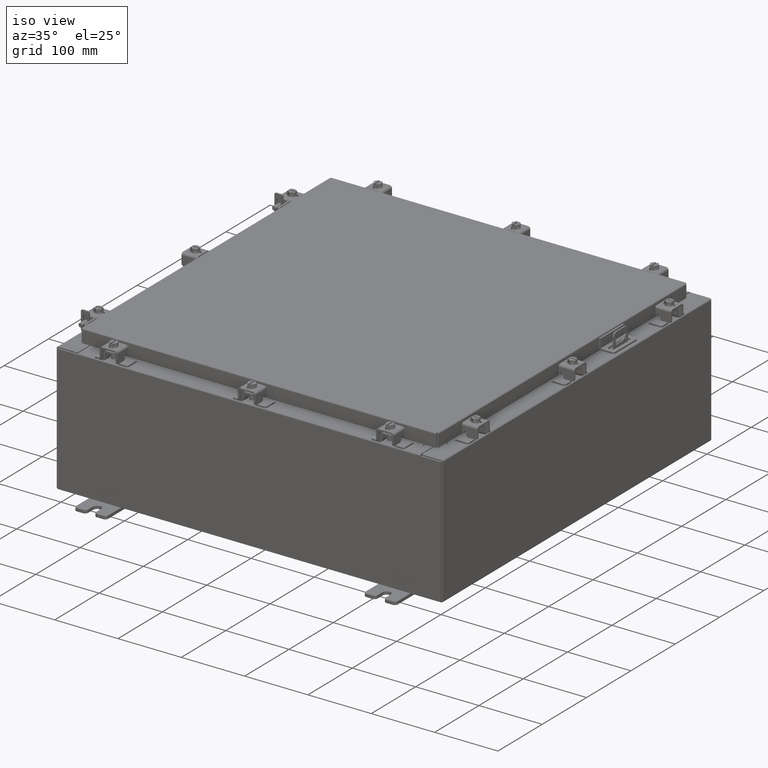
[diagram: clean part render]
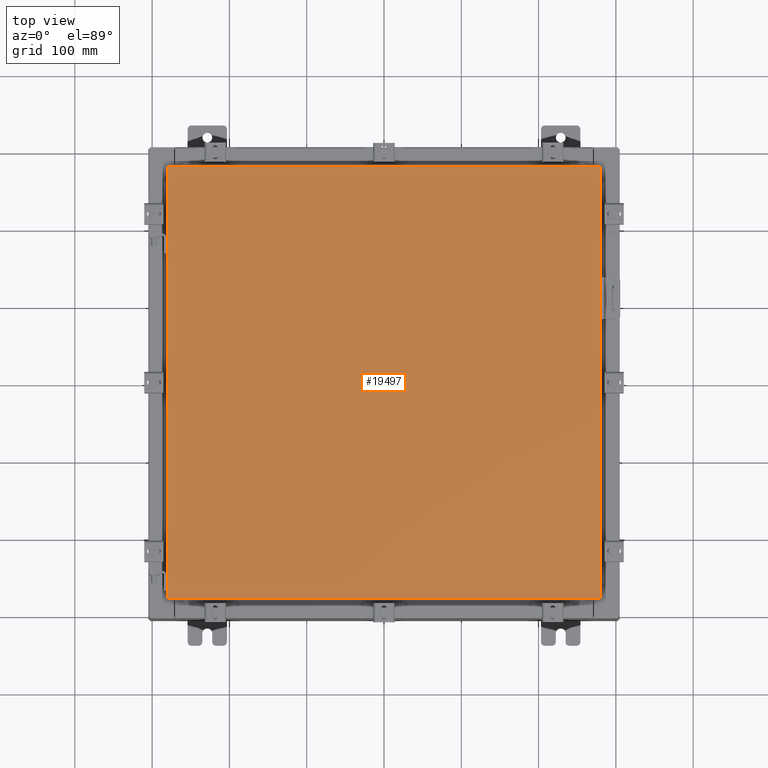
[diagram: tour spotlight — one face highlighted and labeled with its STEP entity id]
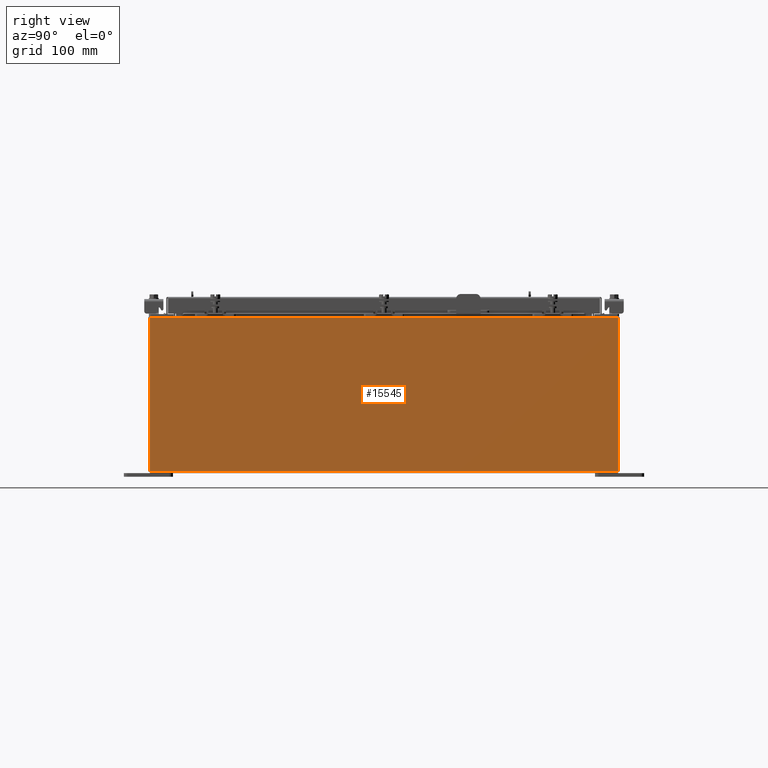
[diagram: tour spotlight — one face highlighted and labeled with its STEP entity id]
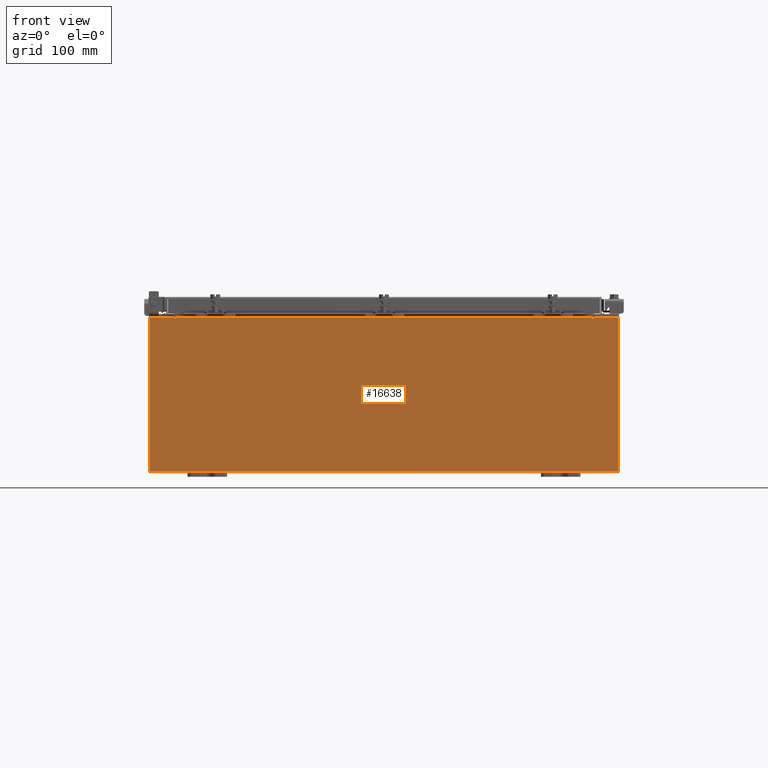
[diagram: tour spotlight — one face highlighted and labeled with its STEP entity id]
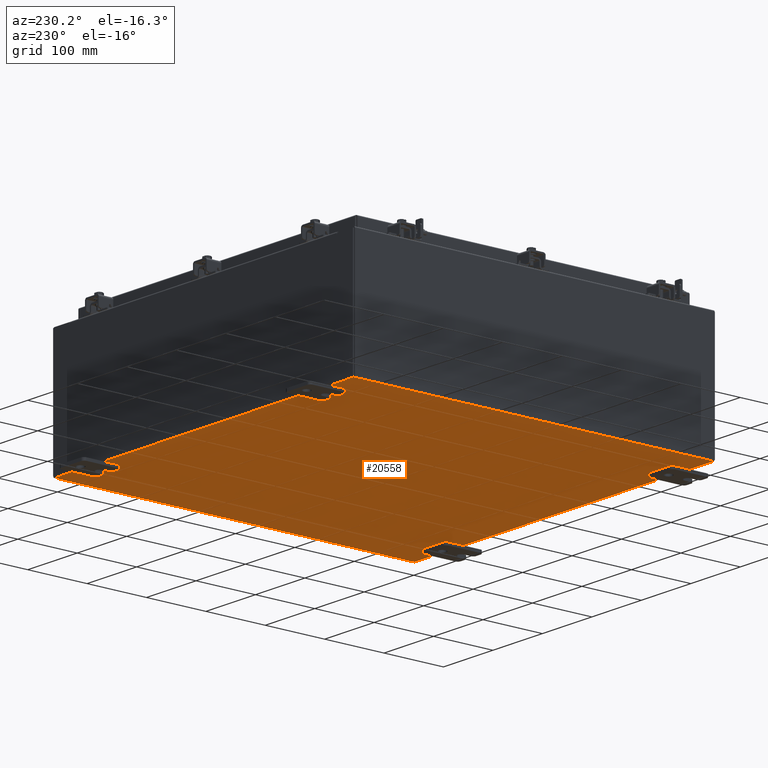
[diagram: tour spotlight — one face highlighted and labeled with its STEP entity id]
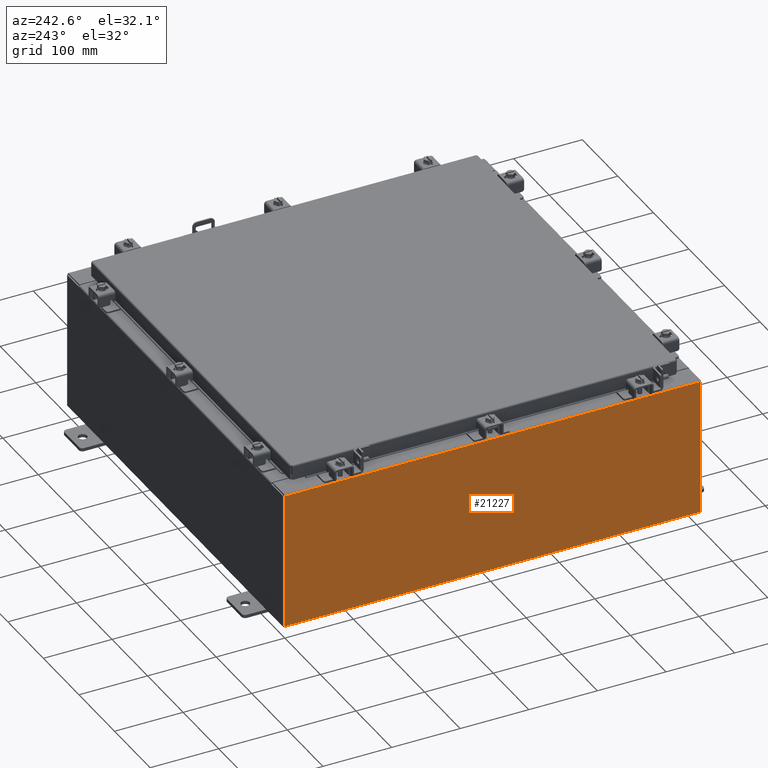
[diagram: tour spotlight — one face highlighted and labeled with its STEP entity id]
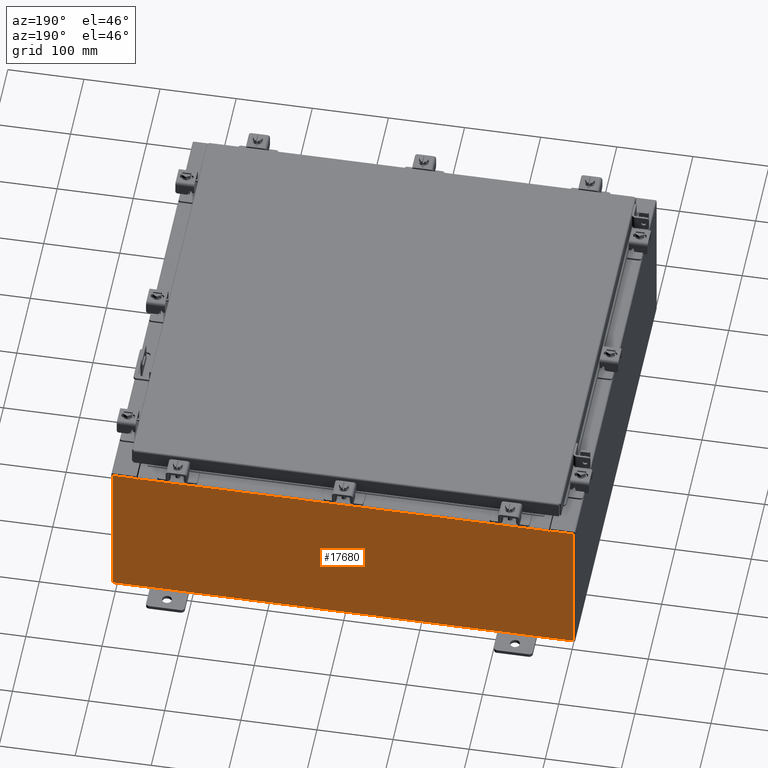
[diagram: tour spotlight — one face highlighted and labeled with its STEP entity id]
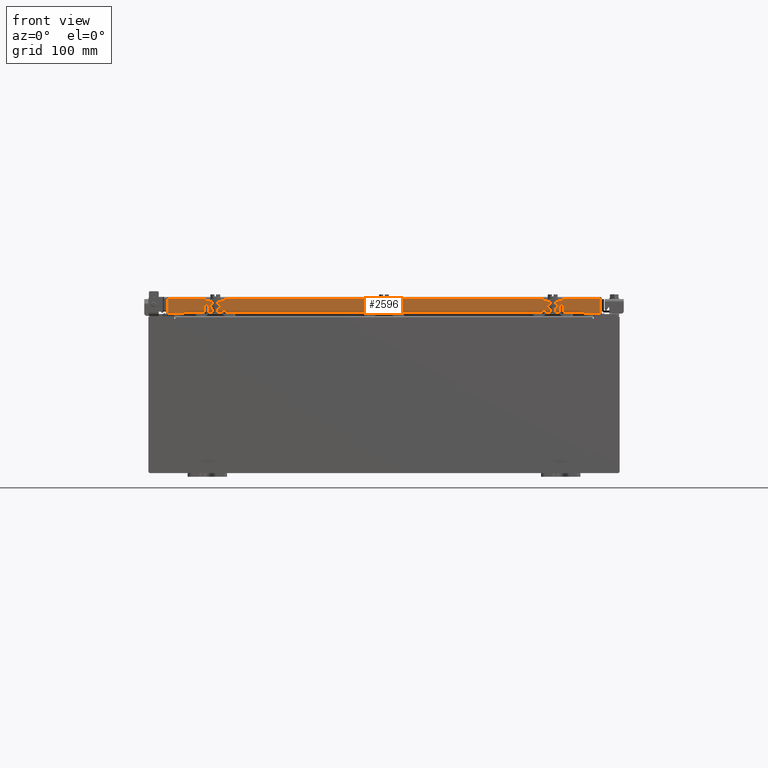
[diagram: tour spotlight — one face highlighted and labeled with its STEP entity id]
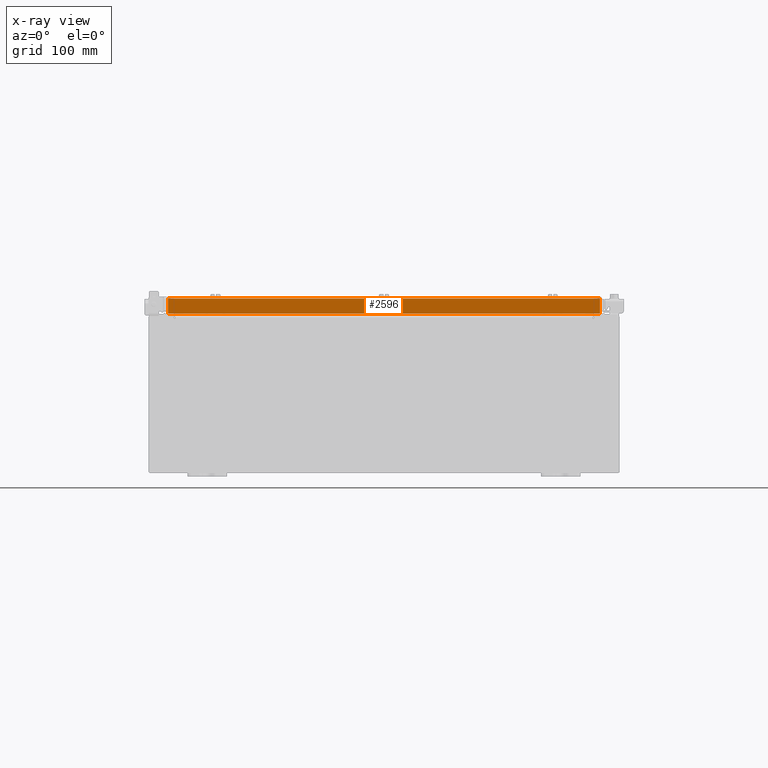
[diagram: x-ray of the same camera — body ghosted, this tour face saturated]
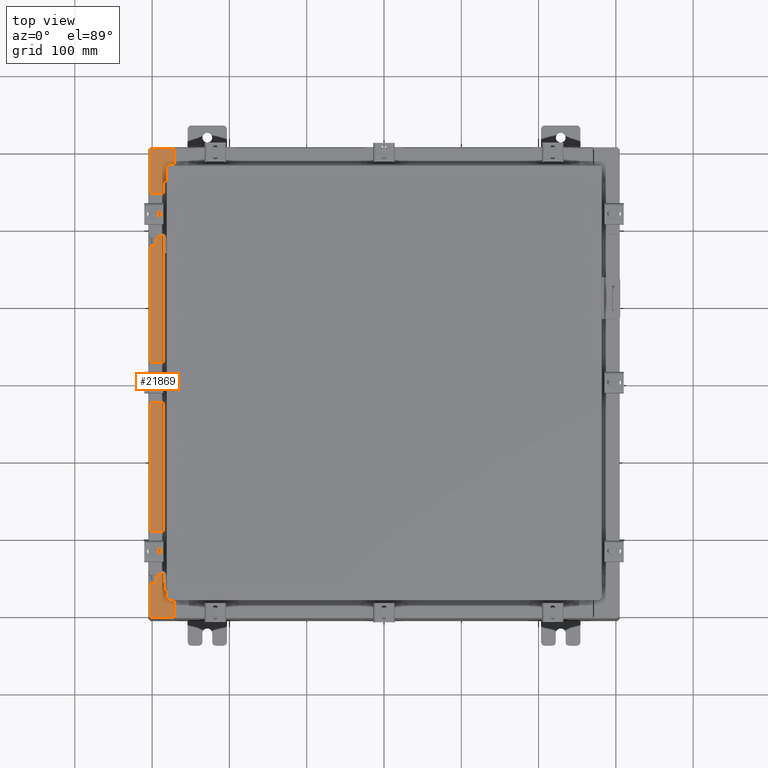
[diagram: tour spotlight — one face highlighted and labeled with its STEP entity id]
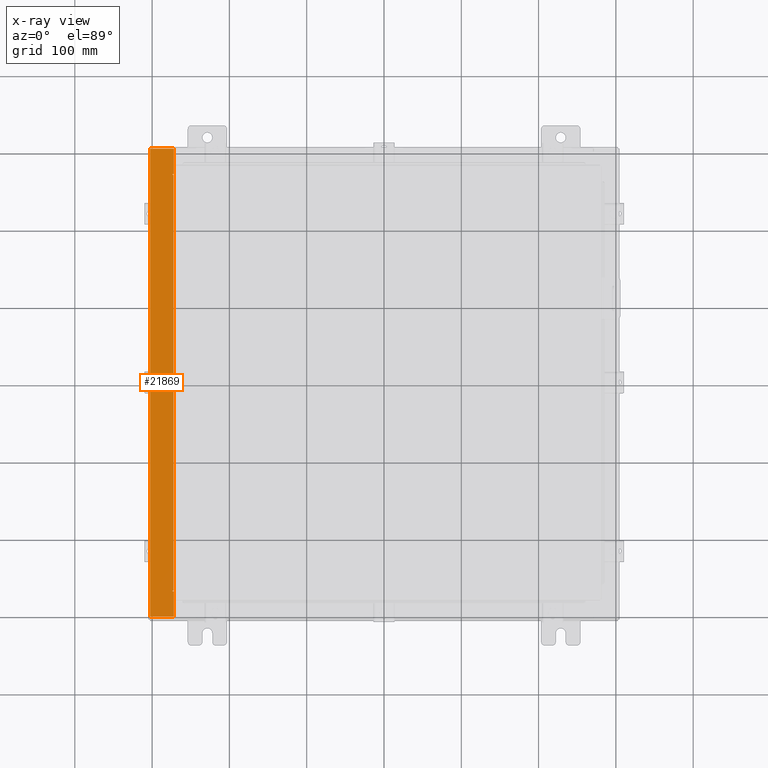
[diagram: x-ray of the same camera — body ghosted, this tour face saturated]
A machine part: a face-by-face anatomy tour. The part has 2018 B-rep faces; the first image is the clean iso view, then the 8 largest visible faces are spotlighted one at a time (largest first), each with its STEP entity span.

Face 1 — top view, entity #19497. In plain terms, the highlighted planar face has unit normal (0, 0, -1).
Definition (entity closure, byte-faithful):
#1004 = VECTOR ( 'NONE', #16387, 39.37007874015748100 ) ;
#1671 = AXIS2_PLACEMENT_3D ( 'NONE', #12001, #6782, #19038 ) ;
#2399 = LINE ( 'NONE', #15863, #19867 ) ;
#3351 = EDGE_LOOP ( 'NONE', ( #6452, #11046, #9992, #14875 ) ) ;
#3413 = CARTESIAN_POINT ( 'NONE',  ( -11.00630000000000000, 11.00630000000000000, 0.0000000000000000000 ) ) ;
#3674 = DIRECTION ( 'NONE',  ( 0.0000000000000000000, 1.000000000000000000, 0.0000000000000000000 ) ) ;
#3941 = VERTEX_POINT ( 'NONE', #15073 ) ;
#6239 = CARTESIAN_POINT ( 'NONE',  ( -11.00630000000000000, 11.00630000000000000, 0.0000000000000000000 ) ) ;
#6452 = ORIENTED_EDGE ( 'NONE', *, *, #21199, .T. ) ;
#6782 = DIRECTION ( 'NONE',  ( 0.0000000000000000000, 0.0000000000000000000, -1.000000000000000000 ) ) ;
#6934 = EDGE_CURVE ( 'NONE', #8355, #3941, #15368, .T. ) ;
#7166 = FACE_OUTER_BOUND ( 'NONE', #3351, .T. ) ;
#8355 = VERTEX_POINT ( 'NONE', #3413 ) ;
#9000 = LINE ( 'NONE', #11472, #18306 ) ;
#9992 = ORIENTED_EDGE ( 'NONE', *, *, #13223, .T. ) ;
#10333 = LINE ( 'NONE', #12996, #1004 ) ;
#10724 = VECTOR ( 'NONE', #11530, 39.37007874015748100 ) ;
#11046 = ORIENTED_EDGE ( 'NONE', *, *, #13667, .T. ) ;
#11472 = CARTESIAN_POINT ( 'NONE',  ( -11.00630000000000000, -11.00630000000000000, 0.0000000000000000000 ) ) ;
#11530 = DIRECTION ( 'NONE',  ( 0.0000000000000000000, -1.000000000000000000, 0.0000000000000000000 ) ) ;
#12001 = CARTESIAN_POINT ( 'NONE',  ( 0.0000000000000000000, 0.0000000000000000000, 0.0000000000000000000 ) ) ;
#12996 = CARTESIAN_POINT ( 'NONE',  ( 11.00630000000000000, 11.00630000000000000, 0.0000000000000000000 ) ) ;
#13223 = EDGE_CURVE ( 'NONE', #18177, #8355, #10333, .T. ) ;
#13667 = EDGE_CURVE ( 'NONE', #19020, #18177, #2399, .T. ) ;
#14875 = ORIENTED_EDGE ( 'NONE', *, *, #6934, .T. ) ;
#15073 = CARTESIAN_POINT ( 'NONE',  ( -11.00630000000000000, -11.00630000000000000, 0.0000000000000000000 ) ) ;
#15368 = LINE ( 'NONE', #6239, #10724 ) ;
#15863 = CARTESIAN_POINT ( 'NONE',  ( 11.00630000000000000, -11.00630000000000000, 0.0000000000000000000 ) ) ;
#16387 = DIRECTION ( 'NONE',  ( -1.000000000000000000, -0.0000000000000000000, -0.0000000000000000000 ) ) ;
#17253 = PLANE ( 'NONE',  #1671 ) ;
#18177 = VERTEX_POINT ( 'NONE', #18359 ) ;
#18306 = VECTOR ( 'NONE', #18491, 39.37007874015748100 ) ;
#18359 = CARTESIAN_POINT ( 'NONE',  ( 11.00630000000000000, 11.00630000000000000, 0.0000000000000000000 ) ) ;
#18491 = DIRECTION ( 'NONE',  ( 1.000000000000000000, -0.0000000000000000000, -0.0000000000000000000 ) ) ;
#18890 = CARTESIAN_POINT ( 'NONE',  ( 11.00630000000000000, -11.00630000000000000, 0.0000000000000000000 ) ) ;
#19020 = VERTEX_POINT ( 'NONE', #18890 ) ;
#19038 = DIRECTION ( 'NONE',  ( -1.000000000000000000, 0.0000000000000000000, -0.0000000000000000000 ) ) ;
#19497 = ADVANCED_FACE ( 'NONE', ( #7166 ), #17253, .F. ) ;
#19867 = VECTOR ( 'NONE', #3674, 39.37007874015748100 ) ;
#21199 = EDGE_CURVE ( 'NONE', #3941, #19020, #9000, .T. ) ;

Face 2 — right view, entity #15545. In plain terms, the highlighted planar face has unit normal (-1, 0, 0).
Definition (entity closure, byte-faithful):
#184 = VECTOR ( 'NONE', #5291, 39.37007874015748100 ) ;
#894 = LINE ( 'NONE', #4488, #10769 ) ;
#1969 = PLANE ( 'NONE',  #5426 ) ;
#2558 = EDGE_CURVE ( 'NONE', #5245, #12346, #14137, .T. ) ;
#2944 = DIRECTION ( 'NONE',  ( 3.584876173029202900E-015, 0.0000000000000000000, 1.000000000000000000 ) ) ;
#3407 = VERTEX_POINT ( 'NONE', #5736 ) ;
#3460 = EDGE_CURVE ( 'NONE', #3407, #18003, #3470, .T. ) ;
#3470 = LINE ( 'NONE', #3863, #16814 ) ;
#3652 = CARTESIAN_POINT ( 'NONE',  ( 11.99999999999999800, -11.92530000000000400, 0.01299999999999983600 ) ) ;
#3863 = CARTESIAN_POINT ( 'NONE',  ( 12.00000000000003000, 11.92529999999999800, 7.837599999999992100 ) ) ;
#4488 = CARTESIAN_POINT ( 'NONE',  ( 11.99999999999999800, -11.92530000000000400, -4.327932773236200600E-014 ) ) ;
#4972 = LINE ( 'NONE', #15133, #18679 ) ;
#5245 = VERTEX_POINT ( 'NONE', #9099 ) ;
#5291 = DIRECTION ( 'NONE',  ( -0.0000000000000000000, -1.000000000000000000, -0.0000000000000000000 ) ) ;
#5426 = AXIS2_PLACEMENT_3D ( 'NONE', #15933, #5466, #17705 ) ;
#5466 = DIRECTION ( 'NONE',  ( -1.000000000000000000, 0.0000000000000000000, 3.584876173029202900E-015 ) ) ;
#5736 = CARTESIAN_POINT ( 'NONE',  ( 12.00000000000003000, 11.92529999999999600, 7.837599999999992100 ) ) ;
#5754 = EDGE_LOOP ( 'NONE', ( #19774, #10238, #10787, #6641 ) ) ;
#6641 = ORIENTED_EDGE ( 'NONE', *, *, #19374, .T. ) ;
#6872 = CARTESIAN_POINT ( 'NONE',  ( 11.99999999999999800, -11.92530000000000400, 0.01299999999999984700 ) ) ;
#9099 = CARTESIAN_POINT ( 'NONE',  ( 11.99999999999999800, 11.92529999999999600, 0.01299999999999984700 ) ) ;
#10238 = ORIENTED_EDGE ( 'NONE', *, *, #18197, .T. ) ;
#10769 = VECTOR ( 'NONE', #13173, 39.37007874015748100 ) ;
#10787 = ORIENTED_EDGE ( 'NONE', *, *, #2558, .F. ) ;
#12346 = VERTEX_POINT ( 'NONE', #3652 ) ;
#13173 = DIRECTION ( 'NONE',  ( -3.584876173029202900E-015, 0.0000000000000000000, -1.000000000000000000 ) ) ;
#14137 = LINE ( 'NONE', #6872, #184 ) ;
#15133 = CARTESIAN_POINT ( 'NONE',  ( 11.99999999999999800, 11.92529999999999800, -4.327932773236200600E-014 ) ) ;
#15545 = ADVANCED_FACE ( 'NONE', ( #20644 ), #1969, .F. ) ;
#15933 = CARTESIAN_POINT ( 'NONE',  ( 11.99999999999999800, 0.0000000000000000000, -4.327932773236200600E-014 ) ) ;
#16213 = CARTESIAN_POINT ( 'NONE',  ( 12.00000000000002700, -11.92530000000000400, 7.837599999999998300 ) ) ;
#16814 = VECTOR ( 'NONE', #20178, 39.37007874015748100 ) ;
#17705 = DIRECTION ( 'NONE',  ( 3.584876173029202900E-015, 0.0000000000000000000, 1.000000000000000000 ) ) ;
#18003 = VERTEX_POINT ( 'NONE', #16213 ) ;
#18197 = EDGE_CURVE ( 'NONE', #18003, #12346, #894, .T. ) ;
#18679 = VECTOR ( 'NONE', #2944, 39.37007874015748100 ) ;
#19374 = EDGE_CURVE ( 'NONE', #5245, #3407, #4972, .T. ) ;
#19774 = ORIENTED_EDGE ( 'NONE', *, *, #3460, .T. ) ;
#20178 = DIRECTION ( 'NONE',  ( -0.0000000000000000000, -1.000000000000000000, -0.0000000000000000000 ) ) ;
#20644 = FACE_OUTER_BOUND ( 'NONE', #5754, .T. ) ;

Face 3 — front view, entity #16638. In plain terms, the highlighted planar face has unit normal (-0, 1, -0).
Definition (entity closure, byte-faithful):
#152 = EDGE_LOOP ( 'NONE', ( #7981, #20682, #7928, #1489, #3853, #22395, #12459, #19082, #11547, #632, #18635, #3039 ) ) ;
#253 = CARTESIAN_POINT ( 'NONE',  ( -11.92530000000000000, 0.0000000000000000000, 3.925299999999999600 ) ) ;
#390 = DIRECTION ( 'NONE',  ( 1.000000000000000000, 0.0000000000000000000, 0.0000000000000000000 ) ) ;
#632 = ORIENTED_EDGE ( 'NONE', *, *, #13686, .T. ) ;
#1236 = VERTEX_POINT ( 'NONE', #22420 ) ;
#1337 = DIRECTION ( 'NONE',  ( 0.0000000000000000000, 0.0000000000000000000, 1.000000000000000000 ) ) ;
#1435 = CARTESIAN_POINT ( 'NONE',  ( -10.63720000000000400, 1.024442997624098700E-016, 3.912299999999999700 ) ) ;
#1447 = LINE ( 'NONE', #6732, #19476 ) ;
#1489 = ORIENTED_EDGE ( 'NONE', *, *, #17178, .T. ) ;
#1768 = VERTEX_POINT ( 'NONE', #20661 ) ;
#1871 = VECTOR ( 'NONE', #15946, 39.37007874015748100 ) ;
#2002 = VECTOR ( 'NONE', #6566, 39.37007874015748100 ) ;
#2107 = AXIS2_PLACEMENT_3D ( 'NONE', #14814, #4365, #16553 ) ;
#3039 = ORIENTED_EDGE ( 'NONE', *, *, #6347, .T. ) ;
#3083 = CIRCLE ( 'NONE', #2107, 0.01867499999999949400 ) ;
#3476 = PLANE ( 'NONE',  #4865 ) ;
#3526 = VERTEX_POINT ( 'NONE', #21753 ) ;
#3684 = VERTEX_POINT ( 'NONE', #13070 ) ;
#3685 = CARTESIAN_POINT ( 'NONE',  ( 10.65587500000000200, 0.0000000000000000000, 3.874949999999999700 ) ) ;
#3749 = CARTESIAN_POINT ( 'NONE',  ( -11.92530000000000000, 0.0000000000000000000, -3.925299999999999600 ) ) ;
#3853 = ORIENTED_EDGE ( 'NONE', *, *, #15864, .F. ) ;
#4142 = CARTESIAN_POINT ( 'NONE',  ( -10.63720000000000400, -0.0000000000000000000, 0.0000000000000000000 ) ) ;
#4144 = VERTEX_POINT ( 'NONE', #20190 ) ;
#4365 = DIRECTION ( 'NONE',  ( -0.0000000000000000000, 1.000000000000000000, -0.0000000000000000000 ) ) ;
#4865 = AXIS2_PLACEMENT_3D ( 'NONE', #6860, #5206, #17419 ) ;
#5206 = DIRECTION ( 'NONE',  ( 0.0000000000000000000, -1.000000000000000000, 0.0000000000000000000 ) ) ;
#5246 = CARTESIAN_POINT ( 'NONE',  ( 10.63720000000000400, 0.0000000000000000000, 3.912299999999999700 ) ) ;
#5424 = DIRECTION ( 'NONE',  ( 0.0000000000000000000, 0.0000000000000000000, -1.000000000000000000 ) ) ;
#5634 = LINE ( 'NONE', #21378, #10318 ) ;
#5639 = EDGE_CURVE ( 'NONE', #1768, #1236, #18135, .T. ) ;
#5713 = CARTESIAN_POINT ( 'NONE',  ( -11.92530000000000000, 0.0000000000000000000, 3.925299999999999600 ) ) ;
#5930 = LINE ( 'NONE', #3749, #1871 ) ;
#6295 = VERTEX_POINT ( 'NONE', #17045 ) ;
#6347 = EDGE_CURVE ( 'NONE', #8864, #4144, #1447, .T. ) ;
#6566 = DIRECTION ( 'NONE',  ( 0.0000000000000000000, 0.0000000000000000000, 1.000000000000000000 ) ) ;
#6640 = VECTOR ( 'NONE', #11922, 39.37007874015748100 ) ;
#6732 = CARTESIAN_POINT ( 'NONE',  ( -11.92530000000000000, 0.0000000000000000000, 3.925299999999999600 ) ) ;
#6860 = CARTESIAN_POINT ( 'NONE',  ( 0.0000000000000000000, 0.0000000000000000000, 0.0000000000000000000 ) ) ;
#7046 = VERTEX_POINT ( 'NONE', #19103 ) ;
#7689 = CARTESIAN_POINT ( 'NONE',  ( -10.63720000000000400, -0.0000000000000000000, 3.874949999999999700 ) ) ;
#7928 = ORIENTED_EDGE ( 'NONE', *, *, #18667, .F. ) ;
#7981 = ORIENTED_EDGE ( 'NONE', *, *, #19522, .F. ) ;
#8300 = VECTOR ( 'NONE', #390, 39.37007874015748100 ) ;
#8542 = CARTESIAN_POINT ( 'NONE',  ( -10.67455000000000200, -0.0000000000000000000, 0.0000000000000000000 ) ) ;
#8864 = VERTEX_POINT ( 'NONE', #17810 ) ;
#9180 = DIRECTION ( 'NONE',  ( 0.0000000000000000000, 0.0000000000000000000, -1.000000000000000000 ) ) ;
#10034 = VECTOR ( 'NONE', #15437, 39.37007874015748100 ) ;
#10067 = CARTESIAN_POINT ( 'NONE',  ( 10.63720000000000400, 0.0000000000000000000, 0.0000000000000000000 ) ) ;
#10236 = FACE_OUTER_BOUND ( 'NONE', #152, .T. ) ;
#10318 = VECTOR ( 'NONE', #9180, 39.37007874015748100 ) ;
#10716 = AXIS2_PLACEMENT_3D ( 'NONE', #3685, #15874, #5424 ) ;
#10945 = DIRECTION ( 'NONE',  ( -0.0000000000000000000, -0.0000000000000000000, 1.000000000000000000 ) ) ;
#11073 = LINE ( 'NONE', #10067, #15174 ) ;
#11286 = LINE ( 'NONE', #4142, #15384 ) ;
#11417 = VECTOR ( 'NONE', #10945, 39.37007874015748100 ) ;
#11547 = ORIENTED_EDGE ( 'NONE', *, *, #14521, .T. ) ;
#11922 = DIRECTION ( 'NONE',  ( 1.000000000000000000, 0.0000000000000000000, 0.0000000000000000000 ) ) ;
#11973 = LINE ( 'NONE', #5713, #11417 ) ;
#12459 = ORIENTED_EDGE ( 'NONE', *, *, #14832, .F. ) ;
#13070 = CARTESIAN_POINT ( 'NONE',  ( -10.63720000000000400, 1.024442997624098700E-016, 3.912299999999999700 ) ) ;
#13095 = EDGE_CURVE ( 'NONE', #3526, #8864, #11973, .T. ) ;
#13686 = EDGE_CURVE ( 'NONE', #7046, #3526, #5930, .T. ) ;
#14521 = EDGE_CURVE ( 'NONE', #1236, #7046, #5634, .T. ) ;
#14647 = LINE ( 'NONE', #20624, #10034 ) ;
#14814 = CARTESIAN_POINT ( 'NONE',  ( -10.65587500000000200, 0.0000000000000000000, 3.874949999999999700 ) ) ;
#14832 = EDGE_CURVE ( 'NONE', #1768, #6295, #14647, .T. ) ;
#15174 = VECTOR ( 'NONE', #1337, 39.37007874015748100 ) ;
#15384 = VECTOR ( 'NONE', #16331, 39.37007874015748100 ) ;
#15437 = DIRECTION ( 'NONE',  ( -4.340572780400004900E-014, 0.0000000000000000000, -1.000000000000000000 ) ) ;
#15447 = DIRECTION ( 'NONE',  ( 1.000000000000000000, 0.0000000000000000000, 0.0000000000000000000 ) ) ;
#15864 = EDGE_CURVE ( 'NONE', #17270, #20227, #11073, .T. ) ;
#15874 = DIRECTION ( 'NONE',  ( -0.0000000000000000000, 1.000000000000000000, -0.0000000000000000000 ) ) ;
#15946 = DIRECTION ( 'NONE',  ( -1.000000000000000000, -0.0000000000000000000, -0.0000000000000000000 ) ) ;
#16331 = DIRECTION ( 'NONE',  ( 0.0000000000000000000, 0.0000000000000000000, -1.000000000000000000 ) ) ;
#16553 = DIRECTION ( 'NONE',  ( 0.0000000000000000000, 0.0000000000000000000, -1.000000000000000000 ) ) ;
#16638 = ADVANCED_FACE ( 'NONE', ( #10236 ), #3476, .F. ) ;
#16724 = EDGE_CURVE ( 'NONE', #6295, #17270, #22456, .T. ) ;
#17045 = CARTESIAN_POINT ( 'NONE',  ( 10.67455000000000200, 0.0000000000000000000, 3.874949999999999700 ) ) ;
#17178 = EDGE_CURVE ( 'NONE', #3684, #20227, #20574, .T. ) ;
#17270 = VERTEX_POINT ( 'NONE', #19087 ) ;
#17419 = DIRECTION ( 'NONE',  ( 0.0000000000000000000, -0.0000000000000000000, -1.000000000000000000 ) ) ;
#17810 = CARTESIAN_POINT ( 'NONE',  ( -11.92530000000000000, 0.0000000000000000000, 3.925299999999999600 ) ) ;
#18135 = LINE ( 'NONE', #253, #8300 ) ;
#18253 = CARTESIAN_POINT ( 'NONE',  ( -10.67455000000000200, 0.0000000000000000000, 3.874949999999999700 ) ) ;
#18635 = ORIENTED_EDGE ( 'NONE', *, *, #13095, .T. ) ;
#18667 = EDGE_CURVE ( 'NONE', #3684, #19217, #11286, .T. ) ;
#19082 = ORIENTED_EDGE ( 'NONE', *, *, #5639, .T. ) ;
#19087 = CARTESIAN_POINT ( 'NONE',  ( 10.63720000000000400, 0.0000000000000000000, 3.874949999999999700 ) ) ;
#19103 = CARTESIAN_POINT ( 'NONE',  ( 11.92530000000000000, 0.0000000000000000000, -3.925299999999999600 ) ) ;
#19217 = VERTEX_POINT ( 'NONE', #7689 ) ;
#19235 = EDGE_CURVE ( 'NONE', #19217, #21121, #3083, .T. ) ;
#19476 = VECTOR ( 'NONE', #15447, 39.37007874015748100 ) ;
#19522 = EDGE_CURVE ( 'NONE', #21121, #4144, #20569, .T. ) ;
#20190 = CARTESIAN_POINT ( 'NONE',  ( -10.67455000000000200, 0.0000000000000000000, 3.925299999999999600 ) ) ;
#20227 = VERTEX_POINT ( 'NONE', #5246 ) ;
#20569 = LINE ( 'NONE', #8542, #2002 ) ;
#20574 = LINE ( 'NONE', #1435, #6640 ) ;
#20624 = CARTESIAN_POINT ( 'NONE',  ( 10.67454999999983300, -0.0000000000000000000, -4.633366117301815000E-013 ) ) ;
#20661 = CARTESIAN_POINT ( 'NONE',  ( 10.67455000000000200, 0.0000000000000000000, 3.925299999999999600 ) ) ;
#20682 = ORIENTED_EDGE ( 'NONE', *, *, #19235, .F. ) ;
#21121 = VERTEX_POINT ( 'NONE', #18253 ) ;
#21378 = CARTESIAN_POINT ( 'NONE',  ( 11.92530000000000000, 0.0000000000000000000, 3.925299999999999600 ) ) ;
#21753 = CARTESIAN_POINT ( 'NONE',  ( -11.92530000000000000, 0.0000000000000000000, -3.925299999999999600 ) ) ;
#22395 = ORIENTED_EDGE ( 'NONE', *, *, #16724, .F. ) ;
#22420 = CARTESIAN_POINT ( 'NONE',  ( 11.92530000000000000, 0.0000000000000000000, 3.925299999999999600 ) ) ;
#22456 = CIRCLE ( 'NONE', #10716, 0.01867499999999949400 ) ;

Face 4 — auxiliary view, entity #20558. In plain terms, the highlighted planar face has unit normal (0, 0, -1).
Definition (entity closure, byte-faithful):
#628 = VERTEX_POINT ( 'NONE', #21792 ) ;
#1186 = PLANE ( 'NONE',  #16741 ) ;
#1551 = CARTESIAN_POINT ( 'NONE',  ( -11.91230000000000400, -11.92530000000000000, -0.07469999999999994700 ) ) ;
#2127 = EDGE_CURVE ( 'NONE', #11741, #628, #5144, .T. ) ;
#2490 = VERTEX_POINT ( 'NONE', #1551 ) ;
#2967 = DIRECTION ( 'NONE',  ( 0.0000000000000000000, 0.0000000000000000000, -1.000000000000000000 ) ) ;
#3244 = ORIENTED_EDGE ( 'NONE', *, *, #2127, .T. ) ;
#3870 = EDGE_LOOP ( 'NONE', ( #8581, #20305, #18083, #3244 ) ) ;
#4400 = VECTOR ( 'NONE', #10295, 39.37007874015748100 ) ;
#4610 = DIRECTION ( 'NONE',  ( -0.0000000000000000000, -1.000000000000000000, -0.0000000000000000000 ) ) ;
#5144 = LINE ( 'NONE', #6006, #19611 ) ;
#5208 = EDGE_CURVE ( 'NONE', #11741, #13531, #18996, .T. ) ;
#6006 = CARTESIAN_POINT ( 'NONE',  ( 11.91229999999999800, 11.92529999999999800, -0.07469999999999994700 ) ) ;
#6643 = DIRECTION ( 'NONE',  ( -0.0000000000000000000, 1.000000000000000000, -0.0000000000000000000 ) ) ;
#8581 = ORIENTED_EDGE ( 'NONE', *, *, #20698, .F. ) ;
#9267 = EDGE_CURVE ( 'NONE', #2490, #13531, #13082, .T. ) ;
#9369 = DIRECTION ( 'NONE',  ( -1.000000000000000000, -0.0000000000000000000, -0.0000000000000000000 ) ) ;
#9685 = VECTOR ( 'NONE', #9369, 39.37007874015748100 ) ;
#10250 = CARTESIAN_POINT ( 'NONE',  ( -12.00000000000000400, 11.92529999999999800, -0.07470000000000000300 ) ) ;
#10295 = DIRECTION ( 'NONE',  ( 1.000000000000000000, 0.0000000000000000000, 0.0000000000000000000 ) ) ;
#11741 = VERTEX_POINT ( 'NONE', #17638 ) ;
#12544 = VECTOR ( 'NONE', #6643, 39.37007874015748100 ) ;
#13082 = LINE ( 'NONE', #17107, #12544 ) ;
#13421 = CARTESIAN_POINT ( 'NONE',  ( 0.0000000000000000000, 0.0000000000000000000, -0.07470000000000000300 ) ) ;
#13531 = VERTEX_POINT ( 'NONE', #20758 ) ;
#15167 = DIRECTION ( 'NONE',  ( -1.000000000000000000, 0.0000000000000000000, -0.0000000000000000000 ) ) ;
#16741 = AXIS2_PLACEMENT_3D ( 'NONE', #13421, #2967, #15167 ) ;
#17107 = CARTESIAN_POINT ( 'NONE',  ( -11.91230000000000400, -11.92530000000000400, -0.07469999999999994700 ) ) ;
#17638 = CARTESIAN_POINT ( 'NONE',  ( 11.91229999999999800, 11.92529999999999600, -0.07469999999999994700 ) ) ;
#18083 = ORIENTED_EDGE ( 'NONE', *, *, #5208, .F. ) ;
#18996 = LINE ( 'NONE', #10250, #9685 ) ;
#19611 = VECTOR ( 'NONE', #4610, 39.37007874015748100 ) ;
#20305 = ORIENTED_EDGE ( 'NONE', *, *, #9267, .T. ) ;
#20518 = FACE_OUTER_BOUND ( 'NONE', #3870, .T. ) ;
#20558 = ADVANCED_FACE ( 'NONE', ( #20518 ), #1186, .T. ) ;
#20698 = EDGE_CURVE ( 'NONE', #2490, #628, #22381, .T. ) ;
#20720 = CARTESIAN_POINT ( 'NONE',  ( -12.00000000000000400, -11.92530000000000400, -0.07470000000000000300 ) ) ;
#20758 = CARTESIAN_POINT ( 'NONE',  ( -11.91230000000000400, 11.92529999999999800, -0.07470000000000000300 ) ) ;
#21792 = CARTESIAN_POINT ( 'NONE',  ( 11.91229999999998900, -11.92530000000000400, -0.07470000000000000300 ) ) ;
#22381 = LINE ( 'NONE', #20720, #4400 ) ;

Face 5 — auxiliary view, entity #21227. In plain terms, the highlighted planar face has unit normal (1, 0, 0).
Definition (entity closure, byte-faithful):
#1071 = PLANE ( 'NONE',  #21698 ) ;
#1155 = CARTESIAN_POINT ( 'NONE',  ( -12.00000000000000400, 11.92529999999999800, 0.01299999999999983600 ) ) ;
#1255 = EDGE_CURVE ( 'NONE', #5532, #21260, #21006, .T. ) ;
#1904 = VECTOR ( 'NONE', #7796, 39.37007874015748100 ) ;
#2260 = CARTESIAN_POINT ( 'NONE',  ( -12.00000000000003200, 11.92529999999999800, 7.837599999999999200 ) ) ;
#2454 = DIRECTION ( 'NONE',  ( 0.0000000000000000000, 1.000000000000000000, 0.0000000000000000000 ) ) ;
#3737 = EDGE_CURVE ( 'NONE', #15888, #5532, #22244, .T. ) ;
#4293 = CARTESIAN_POINT ( 'NONE',  ( -12.00000000000003200, -11.92530000000000400, 7.837599999999999200 ) ) ;
#4896 = EDGE_CURVE ( 'NONE', #16633, #21260, #15173, .T. ) ;
#5507 = ORIENTED_EDGE ( 'NONE', *, *, #10459, .T. ) ;
#5532 = VERTEX_POINT ( 'NONE', #2260 ) ;
#5844 = VECTOR ( 'NONE', #16329, 39.37007874015748100 ) ;
#6634 = ORIENTED_EDGE ( 'NONE', *, *, #3737, .T. ) ;
#7765 = VECTOR ( 'NONE', #2454, 39.37007874015748100 ) ;
#7796 = DIRECTION ( 'NONE',  ( 3.584876173029202900E-015, 0.0000000000000000000, -1.000000000000000000 ) ) ;
#8092 = DIRECTION ( 'NONE',  ( 3.584876173029202900E-015, 0.0000000000000000000, -1.000000000000000000 ) ) ;
#10459 = EDGE_CURVE ( 'NONE', #16633, #15888, #20246, .T. ) ;
#11729 = DIRECTION ( 'NONE',  ( -3.584876173029202900E-015, 0.0000000000000000000, 1.000000000000000000 ) ) ;
#11895 = CARTESIAN_POINT ( 'NONE',  ( -12.00000000000003200, -11.92530000000000000, 7.837599999999999200 ) ) ;
#11958 = CARTESIAN_POINT ( 'NONE',  ( -12.00000000000000400, 11.92529999999999800, -4.327932773236202500E-014 ) ) ;
#12375 = ORIENTED_EDGE ( 'NONE', *, *, #4896, .F. ) ;
#13921 = CARTESIAN_POINT ( 'NONE',  ( -12.00000000000000400, -11.92530000000000000, 0.01299999999999984700 ) ) ;
#15056 = VECTOR ( 'NONE', #11729, 39.37007874015748100 ) ;
#15173 = LINE ( 'NONE', #16931, #5844 ) ;
#15871 = ORIENTED_EDGE ( 'NONE', *, *, #1255, .T. ) ;
#15888 = VERTEX_POINT ( 'NONE', #11895 ) ;
#16329 = DIRECTION ( 'NONE',  ( -0.0000000000000000000, 1.000000000000000000, -0.0000000000000000000 ) ) ;
#16633 = VERTEX_POINT ( 'NONE', #13921 ) ;
#16803 = CARTESIAN_POINT ( 'NONE',  ( -12.00000000000000400, 0.0000000000000000000, -4.327932773236202500E-014 ) ) ;
#16931 = CARTESIAN_POINT ( 'NONE',  ( -12.00000000000000400, 11.92529999999999800, 0.01299999999999984700 ) ) ;
#18567 = DIRECTION ( 'NONE',  ( 1.000000000000000000, 0.0000000000000000000, 3.584876173029202900E-015 ) ) ;
#18879 = FACE_OUTER_BOUND ( 'NONE', #21890, .T. ) ;
#20246 = LINE ( 'NONE', #20412, #15056 ) ;
#20412 = CARTESIAN_POINT ( 'NONE',  ( -12.00000000000000400, -11.92530000000000400, -4.327932773236202500E-014 ) ) ;
#21006 = LINE ( 'NONE', #11958, #1904 ) ;
#21227 = ADVANCED_FACE ( 'NONE', ( #18879 ), #1071, .F. ) ;
#21260 = VERTEX_POINT ( 'NONE', #1155 ) ;
#21698 = AXIS2_PLACEMENT_3D ( 'NONE', #16803, #18567, #8092 ) ;
#21890 = EDGE_LOOP ( 'NONE', ( #6634, #15871, #12375, #5507 ) ) ;
#22244 = LINE ( 'NONE', #4293, #7765 ) ;

Face 6 — auxiliary view, entity #17680. In plain terms, the highlighted planar face has unit normal (0, -1, 0).
Definition (entity closure, byte-faithful):
#343 = VECTOR ( 'NONE', #9813, 39.37007874015748100 ) ;
#509 = CARTESIAN_POINT ( 'NONE',  ( 10.63720000000000400, 0.0000000000000000000, 0.0000000000000000000 ) ) ;
#634 = EDGE_CURVE ( 'NONE', #4079, #12706, #12838, .T. ) ;
#952 = EDGE_CURVE ( 'NONE', #6931, #9167, #12573, .T. ) ;
#988 = ORIENTED_EDGE ( 'NONE', *, *, #21691, .F. ) ;
#1148 = VERTEX_POINT ( 'NONE', #6806 ) ;
#1289 = CARTESIAN_POINT ( 'NONE',  ( 10.67455000000000200, 0.0000000000000000000, 3.874949999999999700 ) ) ;
#1729 = ORIENTED_EDGE ( 'NONE', *, *, #11816, .T. ) ;
#2583 = CARTESIAN_POINT ( 'NONE',  ( -10.67455000000000200, 0.0000000000000000000, 3.925299999999999600 ) ) ;
#2986 = DIRECTION ( 'NONE',  ( 1.000000000000000000, 0.0000000000000000000, 0.0000000000000000000 ) ) ;
#3094 = FACE_OUTER_BOUND ( 'NONE', #18095, .T. ) ;
#3330 = EDGE_CURVE ( 'NONE', #9167, #7399, #18466, .T. ) ;
#3758 = EDGE_CURVE ( 'NONE', #5579, #16771, #6701, .T. ) ;
#3772 = DIRECTION ( 'NONE',  ( 0.0000000000000000000, 0.0000000000000000000, -1.000000000000000000 ) ) ;
#3813 = LINE ( 'NONE', #16365, #17189 ) ;
#3864 = VERTEX_POINT ( 'NONE', #19877 ) ;
#4079 = VERTEX_POINT ( 'NONE', #7908 ) ;
#5499 = DIRECTION ( 'NONE',  ( -0.0000000000000000000, 1.000000000000000000, -0.0000000000000000000 ) ) ;
#5579 = VERTEX_POINT ( 'NONE', #1289 ) ;
#5658 = AXIS2_PLACEMENT_3D ( 'NONE', #6280, #6132, #6045 ) ;
#6045 = DIRECTION ( 'NONE',  ( 0.0000000000000000000, 0.0000000000000000000, -1.000000000000000000 ) ) ;
#6132 = DIRECTION ( 'NONE',  ( -0.0000000000000000000, 1.000000000000000000, -0.0000000000000000000 ) ) ;
#6280 = CARTESIAN_POINT ( 'NONE',  ( -10.65587500000000200, 0.0000000000000000000, 3.874949999999999700 ) ) ;
#6334 = CARTESIAN_POINT ( 'NONE',  ( 11.92530000000000000, 0.0000000000000000000, 3.925299999999999600 ) ) ;
#6369 = CARTESIAN_POINT ( 'NONE',  ( 10.63720000000000400, 0.0000000000000000000, 3.912299999999999700 ) ) ;
#6549 = LINE ( 'NONE', #11144, #14733 ) ;
#6701 = CIRCLE ( 'NONE', #8357, 0.01867499999999949400 ) ;
#6754 = VECTOR ( 'NONE', #9227, 39.37007874015748100 ) ;
#6762 = CARTESIAN_POINT ( 'NONE',  ( -10.63720000000000400, -0.0000000000000000000, 0.0000000000000000000 ) ) ;
#6806 = CARTESIAN_POINT ( 'NONE',  ( -11.92530000000000000, 0.0000000000000000000, -3.925299999999999600 ) ) ;
#6931 = VERTEX_POINT ( 'NONE', #7996 ) ;
#7154 = ORIENTED_EDGE ( 'NONE', *, *, #952, .F. ) ;
#7182 = CARTESIAN_POINT ( 'NONE',  ( 10.65587500000000200, 0.0000000000000000000, 3.874949999999999700 ) ) ;
#7399 = VERTEX_POINT ( 'NONE', #2583 ) ;
#7458 = ORIENTED_EDGE ( 'NONE', *, *, #19968, .T. ) ;
#7512 = CARTESIAN_POINT ( 'NONE',  ( 11.92530000000000000, 0.0000000000000000000, 3.925299999999999600 ) ) ;
#7570 = CARTESIAN_POINT ( 'NONE',  ( -10.67455000000000200, -0.0000000000000000000, 0.0000000000000000000 ) ) ;
#7908 = CARTESIAN_POINT ( 'NONE',  ( -10.63720000000000400, 1.024442997624098700E-016, 3.912299999999999700 ) ) ;
#7996 = CARTESIAN_POINT ( 'NONE',  ( -10.63720000000000400, -0.0000000000000000000, 3.874949999999999700 ) ) ;
#8170 = ORIENTED_EDGE ( 'NONE', *, *, #18211, .T. ) ;
#8357 = AXIS2_PLACEMENT_3D ( 'NONE', #7182, #5499, #3772 ) ;
#8614 = CARTESIAN_POINT ( 'NONE',  ( -11.92530000000000000, 0.0000000000000000000, -3.925299999999999600 ) ) ;
#8997 = ORIENTED_EDGE ( 'NONE', *, *, #634, .T. ) ;
#9167 = VERTEX_POINT ( 'NONE', #9854 ) ;
#9170 = VERTEX_POINT ( 'NONE', #6334 ) ;
#9227 = DIRECTION ( 'NONE',  ( 0.0000000000000000000, 0.0000000000000000000, 1.000000000000000000 ) ) ;
#9449 = DIRECTION ( 'NONE',  ( 1.000000000000000000, 0.0000000000000000000, 0.0000000000000000000 ) ) ;
#9581 = EDGE_CURVE ( 'NONE', #9170, #19170, #20446, .T. ) ;
#9813 = DIRECTION ( 'NONE',  ( -0.0000000000000000000, -0.0000000000000000000, 1.000000000000000000 ) ) ;
#9854 = CARTESIAN_POINT ( 'NONE',  ( -10.67455000000000200, 0.0000000000000000000, 3.874949999999999700 ) ) ;
#9905 = DIRECTION ( 'NONE',  ( 0.0000000000000000000, 0.0000000000000000000, 1.000000000000000000 ) ) ;
#10157 = CARTESIAN_POINT ( 'NONE',  ( 0.0000000000000000000, 0.0000000000000000000, 0.0000000000000000000 ) ) ;
#10391 = DIRECTION ( 'NONE',  ( -1.000000000000000000, -0.0000000000000000000, -0.0000000000000000000 ) ) ;
#11144 = CARTESIAN_POINT ( 'NONE',  ( 10.67454999999983300, -0.0000000000000000000, -4.633366117301815000E-013 ) ) ;
#11161 = VECTOR ( 'NONE', #19668, 39.37007874015748100 ) ;
#11203 = EDGE_CURVE ( 'NONE', #19170, #1148, #15849, .T. ) ;
#11816 = EDGE_CURVE ( 'NONE', #3864, #9170, #3813, .T. ) ;
#11825 = LINE ( 'NONE', #13439, #16416 ) ;
#11926 = PLANE ( 'NONE',  #17605 ) ;
#12312 = VECTOR ( 'NONE', #16670, 39.37007874015748100 ) ;
#12573 = CIRCLE ( 'NONE', #5658, 0.01867499999999949400 ) ;
#12706 = VERTEX_POINT ( 'NONE', #6369 ) ;
#12838 = LINE ( 'NONE', #19411, #12312 ) ;
#13103 = EDGE_CURVE ( 'NONE', #16771, #12706, #20138, .T. ) ;
#13439 = CARTESIAN_POINT ( 'NONE',  ( -11.92530000000000000, 0.0000000000000000000, 3.925299999999999600 ) ) ;
#13674 = DIRECTION ( 'NONE',  ( 0.0000000000000000000, -0.0000000000000000000, -1.000000000000000000 ) ) ;
#13782 = LINE ( 'NONE', #20263, #343 ) ;
#13845 = VECTOR ( 'NONE', #9905, 39.37007874015748100 ) ;
#14144 = ORIENTED_EDGE ( 'NONE', *, *, #11203, .T. ) ;
#14642 = DIRECTION ( 'NONE',  ( -4.340572780400004900E-014, 0.0000000000000000000, -1.000000000000000000 ) ) ;
#14733 = VECTOR ( 'NONE', #14642, 39.37007874015748100 ) ;
#15314 = VECTOR ( 'NONE', #10391, 39.37007874015748100 ) ;
#15485 = DIRECTION ( 'NONE',  ( 0.0000000000000000000, 0.0000000000000000000, -1.000000000000000000 ) ) ;
#15623 = ORIENTED_EDGE ( 'NONE', *, *, #9581, .T. ) ;
#15849 = LINE ( 'NONE', #8614, #15314 ) ;
#16365 = CARTESIAN_POINT ( 'NONE',  ( -11.92530000000000000, 0.0000000000000000000, 3.925299999999999600 ) ) ;
#16416 = VECTOR ( 'NONE', #2986, 39.37007874015748100 ) ;
#16670 = DIRECTION ( 'NONE',  ( 1.000000000000000000, 0.0000000000000000000, 0.0000000000000000000 ) ) ;
#16771 = VERTEX_POINT ( 'NONE', #21197 ) ;
#17096 = DIRECTION ( 'NONE',  ( 0.0000000000000000000, -1.000000000000000000, 0.0000000000000000000 ) ) ;
#17189 = VECTOR ( 'NONE', #9449, 39.37007874015748100 ) ;
#17605 = AXIS2_PLACEMENT_3D ( 'NONE', #10157, #17096, #13674 ) ;
#17680 = ADVANCED_FACE ( 'NONE', ( #3094 ), #11926, .F. ) ;
#17816 = ORIENTED_EDGE ( 'NONE', *, *, #13103, .F. ) ;
#17949 = ORIENTED_EDGE ( 'NONE', *, *, #20120, .F. ) ;
#18095 = EDGE_LOOP ( 'NONE', ( #18976, #7154, #17949, #8997, #17816, #21159, #988, #1729, #15623, #14144, #8170, #7458 ) ) ;
#18182 = CARTESIAN_POINT ( 'NONE',  ( 11.92530000000000000, 0.0000000000000000000, -3.925299999999999600 ) ) ;
#18211 = EDGE_CURVE ( 'NONE', #1148, #21986, #13782, .T. ) ;
#18466 = LINE ( 'NONE', #7570, #13845 ) ;
#18925 = VECTOR ( 'NONE', #15485, 39.37007874015748100 ) ;
#18936 = CARTESIAN_POINT ( 'NONE',  ( -11.92530000000000000, 0.0000000000000000000, 3.925299999999999600 ) ) ;
#18976 = ORIENTED_EDGE ( 'NONE', *, *, #3330, .F. ) ;
#19170 = VERTEX_POINT ( 'NONE', #18182 ) ;
#19411 = CARTESIAN_POINT ( 'NONE',  ( -10.63720000000000400, 1.024442997624098700E-016, 3.912299999999999700 ) ) ;
#19449 = LINE ( 'NONE', #6762, #18925 ) ;
#19668 = DIRECTION ( 'NONE',  ( 0.0000000000000000000, 0.0000000000000000000, -1.000000000000000000 ) ) ;
#19877 = CARTESIAN_POINT ( 'NONE',  ( 10.67455000000000200, 0.0000000000000000000, 3.925299999999999600 ) ) ;
#19968 = EDGE_CURVE ( 'NONE', #21986, #7399, #11825, .T. ) ;
#20120 = EDGE_CURVE ( 'NONE', #4079, #6931, #19449, .T. ) ;
#20138 = LINE ( 'NONE', #509, #6754 ) ;
#20263 = CARTESIAN_POINT ( 'NONE',  ( -11.92530000000000000, 0.0000000000000000000, 3.925299999999999600 ) ) ;
#20446 = LINE ( 'NONE', #7512, #11161 ) ;
#21159 = ORIENTED_EDGE ( 'NONE', *, *, #3758, .F. ) ;
#21197 = CARTESIAN_POINT ( 'NONE',  ( 10.63720000000000400, 0.0000000000000000000, 3.874949999999999700 ) ) ;
#21691 = EDGE_CURVE ( 'NONE', #3864, #5579, #6549, .T. ) ;
#21986 = VERTEX_POINT ( 'NONE', #18936 ) ;

Face 7 — front view, entity #2596. An x-ray twin of the same camera follows (body ghosted, this face saturated) — the face is partly hidden behind the body. In plain terms, the highlighted planar face has unit normal (-0, 1, -0).
Definition (entity closure, byte-faithful):
#356 = VERTEX_POINT ( 'NONE', #18785 ) ;
#633 = ORIENTED_EDGE ( 'NONE', *, *, #10297, .F. ) ;
#964 = CARTESIAN_POINT ( 'NONE',  ( -11.00515786437626400, -11.09400000000000100, -0.8499999999999966500 ) ) ;
#1952 = DIRECTION ( 'NONE',  ( -0.0000000000000000000, -2.818880942772360100E-015, -1.000000000000000000 ) ) ;
#2596 = ADVANCED_FACE ( 'NONE', ( #12494 ), #19499, .F. ) ;
#3100 = AXIS2_PLACEMENT_3D ( 'NONE', #21153, #17681, #15982 ) ;
#3124 = ORIENTED_EDGE ( 'NONE', *, *, #18316, .F. ) ;
#3214 = CARTESIAN_POINT ( 'NONE',  ( -10.25515786437626400, -11.09399999999999400, -0.8500000000000020900 ) ) ;
#3729 = CARTESIAN_POINT ( 'NONE',  ( 11.00515786437626700, -11.09399999999999900, -0.07470000000000015500 ) ) ;
#3823 = VECTOR ( 'NONE', #12903, 39.37007874015748100 ) ;
#3874 = VECTOR ( 'NONE', #6029, 39.37007874015748100 ) ;
#4600 = DIRECTION ( 'NONE',  ( -1.000000000000000000, 0.0000000000000000000, 0.0000000000000000000 ) ) ;
#5437 = LINE ( 'NONE', #16880, #14713 ) ;
#5568 = ORIENTED_EDGE ( 'NONE', *, *, #8700, .F. ) ;
#5913 = ORIENTED_EDGE ( 'NONE', *, *, #11016, .F. ) ;
#6029 = DIRECTION ( 'NONE',  ( 1.000000000000000000, 3.470684265319588300E-031, -9.460278716967662300E-046 ) ) ;
#6065 = VERTEX_POINT ( 'NONE', #11334 ) ;
#6435 = DIRECTION ( 'NONE',  ( 0.0000000000000000000, -2.818880942772360100E-015, -1.000000000000000000 ) ) ;
#6526 = CARTESIAN_POINT ( 'NONE',  ( 11.09399999999999800, -11.09400000000000100, -0.8499999999999999800 ) ) ;
#7948 = EDGE_LOOP ( 'NONE', ( #633, #18927, #3124, #5913, #5568, #7955 ) ) ;
#7955 = ORIENTED_EDGE ( 'NONE', *, *, #14437, .F. ) ;
#8228 = VERTEX_POINT ( 'NONE', #10048 ) ;
#8700 = EDGE_CURVE ( 'NONE', #6065, #356, #13672, .T. ) ;
#9464 = CARTESIAN_POINT ( 'NONE',  ( 11.09399999999999800, -11.09400000000000100, -0.8499999999999999800 ) ) ;
#10048 = CARTESIAN_POINT ( 'NONE',  ( 11.00515786437626700, -11.09399999999999900, -0.08770000000000026400 ) ) ;
#10217 = CARTESIAN_POINT ( 'NONE',  ( -11.00515786437626400, -11.09399999999999900, -0.08770000000000026400 ) ) ;
#10297 = EDGE_CURVE ( 'NONE', #15929, #8228, #12613, .T. ) ;
#11016 = EDGE_CURVE ( 'NONE', #356, #21938, #15035, .T. ) ;
#11334 = CARTESIAN_POINT ( 'NONE',  ( 11.00515786437626700, -11.09400000000000100, -0.8499999999999999800 ) ) ;
#11961 = LINE ( 'NONE', #3729, #16032 ) ;
#12128 = LINE ( 'NONE', #6526, #12668 ) ;
#12494 = FACE_OUTER_BOUND ( 'NONE', #7948, .T. ) ;
#12613 = LINE ( 'NONE', #13016, #3874 ) ;
#12668 = VECTOR ( 'NONE', #20801, 39.37007874015748100 ) ;
#12903 = DIRECTION ( 'NONE',  ( -1.000000000000000000, 4.379057701015054300E-047, 1.231227687788112800E-016 ) ) ;
#13016 = CARTESIAN_POINT ( 'NONE',  ( 11.09399999999999800, -11.09399999999999900, -0.08770000000000026400 ) ) ;
#13672 = LINE ( 'NONE', #9464, #3823 ) ;
#14437 = EDGE_CURVE ( 'NONE', #8228, #6065, #11961, .T. ) ;
#14486 = VECTOR ( 'NONE', #4600, 39.37007874015748100 ) ;
#14713 = VECTOR ( 'NONE', #6435, 39.37007874015748100 ) ;
#15035 = LINE ( 'NONE', #22027, #14486 ) ;
#15929 = VERTEX_POINT ( 'NONE', #10217 ) ;
#15982 = DIRECTION ( 'NONE',  ( 0.0000000000000000000, 2.818880942772360100E-015, 1.000000000000000000 ) ) ;
#16032 = VECTOR ( 'NONE', #1952, 39.37007874015748100 ) ;
#16880 = CARTESIAN_POINT ( 'NONE',  ( -11.00515786437626700, -11.09399999999999900, 3.168943672650545400E-014 ) ) ;
#17681 = DIRECTION ( 'NONE',  ( -3.470684265319587400E-031, 1.000000000000000000, -2.818880942772360100E-015 ) ) ;
#18316 = EDGE_CURVE ( 'NONE', #21938, #19900, #12128, .T. ) ;
#18785 = CARTESIAN_POINT ( 'NONE',  ( 10.25515786437626400, -11.09399999999999400, -0.8500000000000020900 ) ) ;
#18927 = ORIENTED_EDGE ( 'NONE', *, *, #22243, .T. ) ;
#19499 = PLANE ( 'NONE',  #3100 ) ;
#19900 = VERTEX_POINT ( 'NONE', #964 ) ;
#20801 = DIRECTION ( 'NONE',  ( -1.000000000000000000, 4.379057701015054300E-047, 1.231227687788112800E-016 ) ) ;
#21153 = CARTESIAN_POINT ( 'NONE',  ( 0.0000000000000000000, -11.09399999999999900, 3.168943672650545400E-014 ) ) ;
#21938 = VERTEX_POINT ( 'NONE', #3214 ) ;
#22027 = CARTESIAN_POINT ( 'NONE',  ( 10.25515786437626400, -11.09399999999999400, -0.8500000000000020900 ) ) ;
#22243 = EDGE_CURVE ( 'NONE', #15929, #19900, #5437, .T. ) ;

Face 8 — top view, entity #21869. An x-ray twin of the same camera follows (body ghosted, this face saturated) — the face is partly hidden behind the body. In plain terms, the highlighted planar face has unit normal (0, 0, -1).
Definition (entity closure, byte-faithful):
#371 = ORIENTED_EDGE ( 'NONE', *, *, #19209, .T. ) ;
#717 = VERTEX_POINT ( 'NONE', #8118 ) ;
#1206 = LINE ( 'NONE', #20090, #19256 ) ;
#1295 = AXIS2_PLACEMENT_3D ( 'NONE', #6537, #18783, #8291 ) ;
#1559 = VECTOR ( 'NONE', #2170, 39.37007874015748100 ) ;
#1956 = VERTEX_POINT ( 'NONE', #15244 ) ;
#1998 = CARTESIAN_POINT ( 'NONE',  ( -10.69970000000003200, 11.92529999999999800, 7.925300000000008900 ) ) ;
#2170 = DIRECTION ( 'NONE',  ( 1.000000000000000000, -0.0000000000000000000, 7.132762385546384700E-015 ) ) ;
#2370 = EDGE_CURVE ( 'NONE', #8109, #717, #2976, .T. ) ;
#2484 = DIRECTION ( 'NONE',  ( 0.0000000000000000000, 1.000000000000000000, 0.0000000000000000000 ) ) ;
#2511 = LINE ( 'NONE', #21646, #20538 ) ;
#2684 = CIRCLE ( 'NONE', #1295, 0.01867499999999949400 ) ;
#2976 = LINE ( 'NONE', #17034, #15247 ) ;
#2989 = CARTESIAN_POINT ( 'NONE',  ( -10.69970000000003200, -10.63109999999999100, 7.925300000000008900 ) ) ;
#3335 = ORIENTED_EDGE ( 'NONE', *, *, #7655, .F. ) ;
#3563 = VERTEX_POINT ( 'NONE', #9421 ) ;
#3779 = ORIENTED_EDGE ( 'NONE', *, *, #20373, .T. ) ;
#3991 = EDGE_CURVE ( 'NONE', #4257, #15669, #16788, .T. ) ;
#4200 = CARTESIAN_POINT ( 'NONE',  ( -10.71270000000003500, -10.59374999999998900, 7.925300000000006200 ) ) ;
#4257 = VERTEX_POINT ( 'NONE', #9844 ) ;
#4470 = VERTEX_POINT ( 'NONE', #1998 ) ;
#4655 = CARTESIAN_POINT ( 'NONE',  ( -5.679009539018295300E-014, 0.0000000000000000000, 7.925300000000085300 ) ) ;
#5174 = CARTESIAN_POINT ( 'NONE',  ( -10.75005000000003400, 10.59374999999999800, 7.925300000000006200 ) ) ;
#5282 = VECTOR ( 'NONE', #5385, 39.37007874015748100 ) ;
#5385 = DIRECTION ( 'NONE',  ( -0.0000000000000000000, -1.000000000000000000, -0.0000000000000000000 ) ) ;
#5516 = ORIENTED_EDGE ( 'NONE', *, *, #18465, .F. ) ;
#5534 = LINE ( 'NONE', #5174, #14290 ) ;
#5749 = VECTOR ( 'NONE', #2484, 39.37007874015748100 ) ;
#6005 = DIRECTION ( 'NONE',  ( -1.000000000000000000, 0.0000000000000000000, -7.132762385546384700E-015 ) ) ;
#6308 = EDGE_CURVE ( 'NONE', #3563, #12067, #15919, .T. ) ;
#6515 = DIRECTION ( 'NONE',  ( 0.0000000000000000000, 1.000000000000000000, 0.0000000000000000000 ) ) ;
#6537 = CARTESIAN_POINT ( 'NONE',  ( -10.75005000000003400, -10.61242499999998900, 7.925300000000006200 ) ) ;
#6662 = CARTESIAN_POINT ( 'NONE',  ( -10.75005000000003400, -10.63109999999998800, 7.925300000000006200 ) ) ;
#6921 = DIRECTION ( 'NONE',  ( 1.000000000000000000, 0.0000000000000000000, 0.0000000000000000000 ) ) ;
#7406 = ORIENTED_EDGE ( 'NONE', *, *, #2370, .F. ) ;
#7655 = EDGE_CURVE ( 'NONE', #9663, #1956, #22384, .T. ) ;
#7708 = CARTESIAN_POINT ( 'NONE',  ( -11.91230000000003200, -11.92530000000000000, 7.925300000000000000 ) ) ;
#7851 = DIRECTION ( 'NONE',  ( -1.000000000000000000, 0.0000000000000000000, -2.170286390199955400E-014 ) ) ;
#8109 = VERTEX_POINT ( 'NONE', #7708 ) ;
#8118 = CARTESIAN_POINT ( 'NONE',  ( -11.91230000000003200, 11.92529999999999800, 7.925300000000000000 ) ) ;
#8212 = EDGE_CURVE ( 'NONE', #12669, #4470, #8469, .T. ) ;
#8291 = DIRECTION ( 'NONE',  ( 1.000000000000000000, 0.0000000000000000000, 0.0000000000000000000 ) ) ;
#8409 = DIRECTION ( 'NONE',  ( 1.000000000000000000, 0.0000000000000000000, 2.170286390199955400E-014 ) ) ;
#8469 = LINE ( 'NONE', #18754, #17772 ) ;
#8881 = ORIENTED_EDGE ( 'NONE', *, *, #17292, .F. ) ;
#9414 = ORIENTED_EDGE ( 'NONE', *, *, #8212, .T. ) ;
#9421 = CARTESIAN_POINT ( 'NONE',  ( -10.75005000000003400, -10.63109999999998800, 7.925300000000008900 ) ) ;
#9446 = AXIS2_PLACEMENT_3D ( 'NONE', #20666, #10227, #22367 ) ;
#9663 = VERTEX_POINT ( 'NONE', #11209 ) ;
#9739 = CARTESIAN_POINT ( 'NONE',  ( -10.69970000000003200, 10.63109999999999600, 7.925300000000008900 ) ) ;
#9830 = VERTEX_POINT ( 'NONE', #15095 ) ;
#9835 = EDGE_CURVE ( 'NONE', #15669, #3563, #2684, .T. ) ;
#9844 = CARTESIAN_POINT ( 'NONE',  ( -10.71270000000003500, -10.59374999999998900, 7.925300000000006200 ) ) ;
#9909 = ORIENTED_EDGE ( 'NONE', *, *, #14504, .T. ) ;
#9924 = DIRECTION ( 'NONE',  ( 7.132762385546384700E-015, 0.0000000000000000000, -1.000000000000000000 ) ) ;
#10196 = EDGE_LOOP ( 'NONE', ( #17062, #9414, #371, #7406, #9909, #3779, #17485, #17563, #13710, #5516, #8881, #3335 ) ) ;
#10227 = DIRECTION ( 'NONE',  ( -7.132762385546384700E-015, -0.0000000000000000000, 1.000000000000000000 ) ) ;
#10488 = LINE ( 'NONE', #14107, #5282 ) ;
#11209 = CARTESIAN_POINT ( 'NONE',  ( -10.75005000000003400, 10.63109999999999600, 7.925300000000008900 ) ) ;
#11464 = FACE_OUTER_BOUND ( 'NONE', #10196, .T. ) ;
#12067 = VERTEX_POINT ( 'NONE', #2989 ) ;
#12173 = VECTOR ( 'NONE', #15935, 39.37007874015748100 ) ;
#12669 = VERTEX_POINT ( 'NONE', #9739 ) ;
#13710 = ORIENTED_EDGE ( 'NONE', *, *, #3991, .F. ) ;
#14107 = CARTESIAN_POINT ( 'NONE',  ( -10.71270000000003500, 10.59374999999999300, 7.925300000000006200 ) ) ;
#14290 = VECTOR ( 'NONE', #6921, 39.37007874015748100 ) ;
#14387 = CARTESIAN_POINT ( 'NONE',  ( -5.679009539018295300E-014, -11.92530000000000000, 7.925300000000085300 ) ) ;
#14504 = EDGE_CURVE ( 'NONE', #8109, #9830, #19581, .T. ) ;
#14576 = AXIS2_PLACEMENT_3D ( 'NONE', #4655, #9924, #22084 ) ;
#14696 = CARTESIAN_POINT ( 'NONE',  ( -10.69970000000003200, 0.0000000000000000000, 7.925300000000008900 ) ) ;
#15095 = CARTESIAN_POINT ( 'NONE',  ( -10.69970000000003200, -11.92530000000000000, 7.925300000000008900 ) ) ;
#15244 = CARTESIAN_POINT ( 'NONE',  ( -10.75005000000003400, 10.59374999999999800, 7.925300000000008900 ) ) ;
#15247 = VECTOR ( 'NONE', #17116, 39.37007874015748100 ) ;
#15669 = VERTEX_POINT ( 'NONE', #16135 ) ;
#15919 = LINE ( 'NONE', #6662, #20572 ) ;
#15935 = DIRECTION ( 'NONE',  ( -1.000000000000000000, 0.0000000000000000000, 0.0000000000000000000 ) ) ;
#16135 = CARTESIAN_POINT ( 'NONE',  ( -10.75005000000003400, -10.59374999999998900, 7.925300000000008900 ) ) ;
#16382 = EDGE_CURVE ( 'NONE', #12669, #9663, #1206, .T. ) ;
#16788 = LINE ( 'NONE', #4200, #12173 ) ;
#16848 = PLANE ( 'NONE',  #14576 ) ;
#17034 = CARTESIAN_POINT ( 'NONE',  ( -11.91230000000003200, 11.92529999999999800, 7.925300000000000000 ) ) ;
#17062 = ORIENTED_EDGE ( 'NONE', *, *, #16382, .F. ) ;
#17116 = DIRECTION ( 'NONE',  ( -0.0000000000000000000, 1.000000000000000000, -0.0000000000000000000 ) ) ;
#17292 = EDGE_CURVE ( 'NONE', #1956, #21373, #5534, .T. ) ;
#17485 = ORIENTED_EDGE ( 'NONE', *, *, #6308, .F. ) ;
#17563 = ORIENTED_EDGE ( 'NONE', *, *, #9835, .F. ) ;
#17772 = VECTOR ( 'NONE', #6515, 39.37007874015748100 ) ;
#18465 = EDGE_CURVE ( 'NONE', #21373, #4257, #10488, .T. ) ;
#18754 = CARTESIAN_POINT ( 'NONE',  ( -10.69970000000003200, 0.0000000000000000000, 7.925300000000008900 ) ) ;
#18783 = DIRECTION ( 'NONE',  ( -7.132762385546384700E-015, -0.0000000000000000000, 1.000000000000000000 ) ) ;
#19176 = LINE ( 'NONE', #14696, #5749 ) ;
#19209 = EDGE_CURVE ( 'NONE', #4470, #717, #2511, .T. ) ;
#19256 = VECTOR ( 'NONE', #7851, 39.37007874015748100 ) ;
#19581 = LINE ( 'NONE', #14387, #1559 ) ;
#20090 = CARTESIAN_POINT ( 'NONE',  ( -10.69970000000003200, 10.63109999999999600, 7.925300000000007100 ) ) ;
#20373 = EDGE_CURVE ( 'NONE', #9830, #12067, #19176, .T. ) ;
#20538 = VECTOR ( 'NONE', #6005, 39.37007874015748100 ) ;
#20572 = VECTOR ( 'NONE', #8409, 39.37007874015748100 ) ;
#20666 = CARTESIAN_POINT ( 'NONE',  ( -10.75005000000003400, 10.61242499999999800, 7.925300000000006200 ) ) ;
#21373 = VERTEX_POINT ( 'NONE', #22334 ) ;
#21646 = CARTESIAN_POINT ( 'NONE',  ( -5.679009539018295300E-014, 11.92529999999999800, 7.925300000000085300 ) ) ;
#21869 = ADVANCED_FACE ( 'NONE', ( #11464 ), #16848, .F. ) ;
#22084 = DIRECTION ( 'NONE',  ( -1.000000000000000000, 0.0000000000000000000, -7.132762385546384700E-015 ) ) ;
#22334 = CARTESIAN_POINT ( 'NONE',  ( -10.71270000000003500, 10.59374999999999800, 7.925300000000006200 ) ) ;
#22367 = DIRECTION ( 'NONE',  ( 1.000000000000000000, 0.0000000000000000000, 0.0000000000000000000 ) ) ;
#22384 = CIRCLE ( 'NONE', #9446, 0.01867499999999949400 ) ;